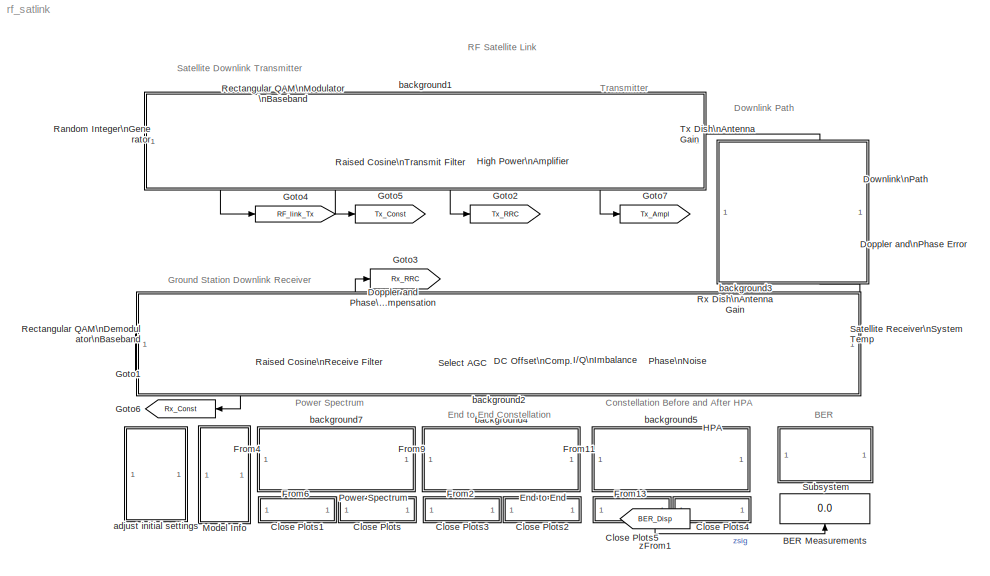
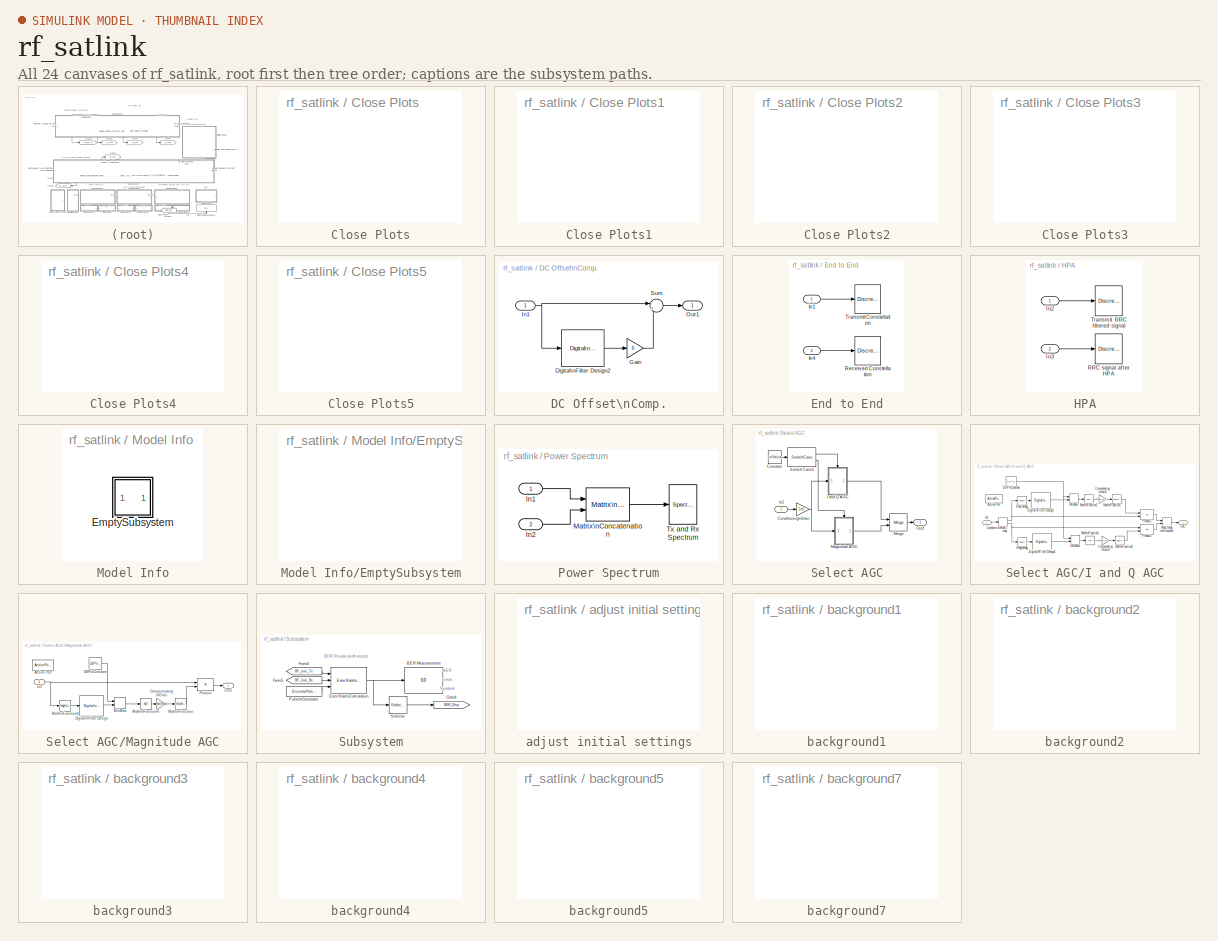
[diagram: thumbnail index - all 24 canvases of the model, root first then tree order]
MODEL rf_satlink
KIND model
BLOCK [Display] BER Measurements
  Decimation = 1
  Ports = [1]
BLOCK [SubSystem] Close Plots
  MaskDisplay = disp('Close Scopes');
  MaskIconFrame = on
  MaskIconOpaque = on
  MaskIconRotate = none
  MaskIconUnits = autoscale
  MinAlgLoopOccurrences = off
  OpenFcn = sdspfscope2([],[],[],'ScopeUpdate',[gcs '/Power Spectrum/Tx and Rx Spectrum'],'CloseFig');\nset_param([gcs '/Power Spectrum/Tx and Rx Spectrum'],'OpenScopeAtSimStart','off');
  Ports = []
  PropExecContextAcrossSSBoundary = on
  RTWSystemCode = Auto
  TreatAsAtomicUnit = off
BLOCK [SubSystem] Close Plots1
  MaskDisplay = disp('Open Scopes');
  MaskIconFrame = on
  MaskIconOpaque = on
  MaskIconRotate = none
  MaskIconUnits = autoscale
  MinAlgLoopOccurrences = off
  OpenFcn = sdspfscope2([],[],[],'ScopeUpdate',[gcs '/Power Spectrum/Tx and Rx Spectrum'],'OpenFig');\nset_param([gcs '/Power Spectrum/Tx and Rx Spectrum'],'OpenScopeAtSimStart','on');
  Ports = []
  PropExecContextAcrossSSBoundary = on
  RTWSystemCode = Auto
  TreatAsAtomicUnit = off
BLOCK [SubSystem] Close Plots2
  MaskDisplay = disp('Close Scopes');
  MaskIconFrame = on
  MaskIconOpaque = on
  MaskIconRotate = none
  MaskIconUnits = autoscale
  MinAlgLoopOccurrences = off
  OpenFcn = sdspfscope2([],[],[],'ScopeUpdate',[gcs '/End to End/Transmit Constellation'],'CloseFig');   \n   sdspfscope2([],[],[],'ScopeUpdate',[gcs '/End to End/Received Constellation'],'CloseFig');\n set_param([gcs '/End to End/Transmit Constellation'],'OpenScopeAtSimStart','off');          \n   set_param([gcs '/End to End/Received Constellation'],'OpenScopeAtSimStart','off');
  Ports = []
  PropExecContextAcrossSSBoundary = on
  RTWSystemCode = Auto
  TreatAsAtomicUnit = off
BLOCK [SubSystem] Close Plots3
  MaskDisplay = disp('Open Scopes');
  MaskIconFrame = on
  MaskIconOpaque = on
  MaskIconRotate = none
  MaskIconUnits = autoscale
  MinAlgLoopOccurrences = off
  OpenFcn = sdspfscope2([],[],[],'ScopeUpdate',[gcs '/End to End/Transmit Constellation'],'OpenFig');    \n    sdspfscope2([],[],[],'ScopeUpdate',[gcs '/End to End/Received Constellation'],'OpenFig');\n  set_param([gcs '/End to End/Transmit Constellation'],'OpenScopeAtSimStart','on');          \n    set_param([gcs '/End to End/Received Constellation'],'OpenScopeAtSimStart','on');
  Ports = []
  PropExecContextAcrossSSBoundary = on
  RTWSystemCode = Auto
  TreatAsAtomicUnit = off
BLOCK [SubSystem] Close Plots4
  MaskDisplay = disp('Close Scopes');
  MaskIconFrame = on
  MaskIconOpaque = on
  MaskIconRotate = none
  MaskIconUnits = autoscale
  MinAlgLoopOccurrences = off
  OpenFcn = sdspfscope2([],[],[],'ScopeUpdate',[gcs '/HPA/Transmit RRC filtered signal'],'CloseFig');\n  set_param([gcs '/HPA/Transmit RRC filtered signal'],'OpenScopeAtSimStart','off');      \n    sdspfscope2([],[],[],'ScopeUpdate',[gcs '/HPA/RRC signal after HPA'],'CloseFig');    \n  set_param([gcs '/HPA/RRC signal after HPA'],'OpenScopeAtSimStart','off');
  Ports = []
  PropExecContextAcrossSSBoundary = on
  RTWSystemCode = Auto
  TreatAsAtomicUnit = off
BLOCK [SubSystem] Close Plots5
  MaskDisplay = disp('Open Scopes');
  MaskIconFrame = on
  MaskIconOpaque = on
  MaskIconRotate = none
  MaskIconUnits = autoscale
  MinAlgLoopOccurrences = off
  OpenFcn = sdspfscope2([],[],[],'ScopeUpdate',[gcs '/HPA/Transmit RRC filtered signal'],'OpenFig');\nset_param([gcs '/HPA/Transmit RRC filtered signal'],'OpenScopeAtSimStart','on');        \n  sdspfscope2([],[],[],'ScopeUpdate',[gcs '/HPA/RRC signal after HPA'],'OpenFig');      \nset_param([gcs '/HPA/RRC signal after HPA'],'OpenScopeAtSimStart','on');                \n
  Ports = []
  PropExecContextAcrossSSBoundary = on
  RTWSystemCode = Auto
  TreatAsAtomicUnit = off
BLOCK [SubSystem] DC Offset\nComp.
  BlockChoice = Magnitude Only
  MaskDisplay = disp('DC\\nRemoval')
  MaskIconFrame = on
  MaskIconOpaque = on
  MaskIconRotate = none
  MaskIconUnits = autoscale
  MinAlgLoopOccurrences = off
  Ports = [1, 1]
  PropExecContextAcrossSSBoundary = on
  RTWSystemCode = Auto
  TreatAsAtomicUnit = off
BLOCK [Reference] DC Offset\nComp./Digital\nFilter Design2  REF=dsparch4/Digital\nFilter Design
  Ports = [1, 1]
  ShowPortLabels = on
  SourceBlock = dsparch4/Digital\nFilter Design
  SourceType = Unknown
  UserData = DataTag0
  UserDataPersistent = on
BLOCK [Gain] DC Offset\nComp./Gain
  Gain = 0
BLOCK [Inport] DC Offset\nComp./In1
  IconDisplay = Port number
  LatchInput = off
BLOCK [Outport] DC Offset\nComp./Out1
  BusOutputAsStruct = off
  IconDisplay = Port number
BLOCK [Sum] DC Offset\nComp./Sum
  IconShape = round
  InputSameDT = off
  Inputs = |+-
  OutDataTypeMode = Inherit via internal rule
  Ports = [2, 1]
BLOCK [Reference] Doppler and Phase\nCompensation  REF=commrflib2/Phase//\nFrequency\nOffset
  Ports = [1, 1]
  ShowPortLabels = on
  SourceBlock = commrflib2/Phase//\nFrequency\nOffset
  SourceType = Phase/Frequency Offset
  freqOffset = 0
  phaseOffset = 0
BLOCK [Reference] Doppler and\nPhase Error  REF=commrflib2/Phase//\nFrequency\nOffset
  Ports = [1, 1]
  ShowPortLabels = on
  SourceBlock = commrflib2/Phase//\nFrequency\nOffset
  SourceType = Phase/Frequency Offset
  freqOffset = 0
  phaseOffset = 0
BLOCK [Reference] Downlink\nPath  REF=commrflib2/Free Space\nPath Loss
  Ports = [1, 1]
  ShowPortLabels = on
  SourceBlock = commrflib2/Free Space\nPath Loss
  SourceType = Free Space Path Loss
  d = 35600
  dB = 180
  fc = 8000
  mode = Distance and Frequency
BLOCK [SubSystem] End to End
  MaskDisplay = disp('End-End\\nScatter\\nPlot')
  MaskIconFrame = on
  MaskIconOpaque = on
  MaskIconRotate = none
  MaskIconUnits = autoscale
  MinAlgLoopOccurrences = off
  Ports = [2]
  PropExecContextAcrossSSBoundary = on
  RTWSystemCode = Auto
  TreatAsAtomicUnit = on
BLOCK [Inport] End to End/In1
  IconDisplay = Port number
  LatchInput = off
BLOCK [Inport] End to End/In4
  IconDisplay = Port number
  LatchInput = off
  Port = 2
BLOCK [Reference] End to End/Received Constellation  REF=commsink2/Discrete-Time\nScatter Plot\nScope
  AxisGrid = on
  FigPos = [382 347 258 258]
  FrameNumber = off
  LineColors = r
  LineMarkers = .
  Ports = [1]
  ShowPortLabels = on
  SourceBlock = commsink2/Discrete-Time\nScatter Plot\nScope
  SourceType = Discrete-Time Scatter Plot Scope
  Tag = ScatterPlot
  block_type_ = scatter
  fading = on
  inphaseLabel = In-phase Amplitude
  numLinesMax = 50
  numNewFrames = 40
  numTraces = 160
  offsetEye = 0
  openScopeAtSimStart = on
  quadratureLabel = Quadrature Amplitude
  render = off
  sampPerSymb = 8
  xMax = 1.2246188834561
  xMin = -1.19233403062067
  yMax = 1.20845918650224
  yMin = -1.20849372757452
BLOCK [Reference] End to End/Transmit Constellation  REF=commsink2/Discrete-Time\nScatter Plot\nScope
  AxisGrid = on
  FigPos = [114 346 260 260]
  FrameNumber = on
  LineColors = b
  LineMarkers = .
  Ports = [1]
  ShowPortLabels = on
  SourceBlock = commsink2/Discrete-Time\nScatter Plot\nScope
  SourceType = Discrete-Time Scatter Plot Scope
  Tag = ScatterPlot
  block_type_ = scatter
  fading = on
  inphaseLabel = In-phase Amplitude
  numLinesMax = 50
  numNewFrames = 30
  numTraces = 30
  offsetEye = 0
  openScopeAtSimStart = on
  quadratureLabel = Quadrature Amplitude
  render = off
  sampPerSymb = 8
  xMax = 1.04829504434582
  xMin = -1.04355162785557
  yMax = 1.04829504434582
  yMin = -1.04355162785557
BLOCK [From] From11
  CloseFcn = tagdialog Close
  DialogController = Simulink.DDGSource
  GotoTag = Tx_RRC
BLOCK [From] From13
  CloseFcn = tagdialog Close
  DialogController = Simulink.DDGSource
  GotoTag = Tx_Ampl
BLOCK [From] From2
  CloseFcn = tagdialog Close
  DialogController = Simulink.DDGSource
  GotoTag = Rx_Const
BLOCK [From] From4
  CloseFcn = tagdialog Close
  DialogController = Simulink.DDGSource
  GotoTag = Tx_RRC
BLOCK [From] From6
  CloseFcn = tagdialog Close
  DialogController = Simulink.DDGSource
  GotoTag = Rx_RRC
BLOCK [From] From9
  CloseFcn = tagdialog Close
  DialogController = Simulink.DDGSource
  GotoTag = Tx_Const
BLOCK [Goto] Goto1
  DialogController = Simulink.DDGSource
  GotoTag = RF_link_Rx
  TagVisibility = global
BLOCK [Goto] Goto2
  DialogController = Simulink.DDGSource
  GotoTag = Tx_RRC
  TagVisibility = global
BLOCK [Goto] Goto3
  DialogController = Simulink.DDGSource
  GotoTag = Rx_RRC
  TagVisibility = global
BLOCK [Goto] Goto4
  DialogController = Simulink.DDGSource
  GotoTag = RF_link_Tx
  TagVisibility = global
BLOCK [Goto] Goto5
  DialogController = Simulink.DDGSource
  GotoTag = Tx_Const
  TagVisibility = global
BLOCK [Goto] Goto6
  DialogController = Simulink.DDGSource
  GotoTag = Rx_Const
  TagVisibility = global
BLOCK [Goto] Goto7
  DialogController = Simulink.DDGSource
  GotoTag = Tx_Ampl
  TagVisibility = global
BLOCK [SubSystem] HPA
  MaskDisplay = disp('HPA\\nScatter\\nPlot')
  MaskIconFrame = on
  MaskIconOpaque = on
  MaskIconRotate = none
  MaskIconUnits = autoscale
  MinAlgLoopOccurrences = off
  Ports = [2]
  PropExecContextAcrossSSBoundary = on
  RTWSystemCode = Auto
  TreatAsAtomicUnit = on
BLOCK [Inport] HPA/In2
  IconDisplay = Port number
  LatchInput = off
BLOCK [Inport] HPA/In3
  IconDisplay = Port number
  LatchInput = off
  Port = 2
BLOCK [Reference] HPA/RRC signal after HPA  REF=commsink2/Discrete-Time\nScatter Plot\nScope
  AxisGrid = on
  FigPos = [422 300 243 243]
  FrameNumber = off
  LineColors = r
  LineMarkers = .
  Ports = [1]
  ShowPortLabels = on
  SourceBlock = commsink2/Discrete-Time\nScatter Plot\nScope
  SourceType = Discrete-Time Scatter Plot Scope
  Tag = ScatterPlot
  block_type_ = scatter
  fading = on
  inphaseLabel = In-phase Amplitude
  numLinesMax = 50
  numNewFrames = 80
  numTraces = 200
  offsetEye = 0
  openScopeAtSimStart = off
  quadratureLabel = Quadrature Amplitude
  render = off
  sampPerSymb = 8
  xMax = 4.01163575275656
  xMin = -4.02161513041803
  yMax = 4.03974343887645
  yMin = -3.99350744429814
BLOCK [Reference] HPA/Transmit RRC filtered signal  REF=commsink2/Discrete-Time\nScatter Plot\nScope
  AxisGrid = on
  FigPos = [166 310 243 243]
  FrameNumber = off
  LineColors = b
  LineMarkers = .
  Ports = [1]
  ShowPortLabels = on
  SourceBlock = commsink2/Discrete-Time\nScatter Plot\nScope
  SourceType = Discrete-Time Scatter Plot Scope
  Tag = ScatterPlot
  block_type_ = scatter
  fading = on
  inphaseLabel = In-phase Amplitude
  numLinesMax = 50
  numNewFrames = 80
  numTraces = 200
  offsetEye = 0
  openScopeAtSimStart = off
  quadratureLabel = Quadrature Amplitude
  render = off
  sampPerSymb = 8
  xMax = 0.495177369466584
  xMin = -0.494106248905821
  yMax = 0.500446418364239
  yMin = -0.488837200008166
BLOCK [Reference] High Power\nAmplifier  REF=commrflib2/Memoryless\nNonlinearity
  GindB = -21.5957
  GoutdB = 32.9118
  Ports = [1, 1]
  ShowPortLabels = on
  SourceBlock = commrflib2/Memoryless\nNonlinearity
  SourceType = Memoryless Nonlinearity
  am2pm = 1
  amam = [2.1587 1.1517]
  ampm = [4.0330 9.1040]
  iip3 = 30
  linGaindB = 16
  model_select = Saleh model
  p = 0.3
  vsat = 100
  x = [8.1081 1.5413 6.5202 -0.0718]
  y = [4.6645 2.0965 10.88 -0.003]
BLOCK [Reference] I//Q\nImbalance  REF=commrflib2/I//Q\nImbalance
  Idc = 0
  Ports = [1, 1]
  Qdc = 0
  ShowPortLabels = on
  SourceBlock = commrflib2/I//Q\nImbalance
  SourceType = I/Q Imbalance
  ampImbal = 0
  phsImbal = 0
BLOCK [SubSystem] Model Info
  CopyFcn = slcm CopyBlock;
  DeleteFcn = slcm Cancel;
  InitFcn = slcm('UpdateAllCMBlocksInThisModelInit')
  LoadFcn = slcm LoadBlock;
  MaskCallbackString = ||||||||||||||||||||||||||||||
  MaskDescription = This block allows revision control information to be displayed within the model.
  MaskDisplay = text(str2num(LeftAlignmentValue), 0.5, MaskDisplayString, 'HorizontalAlignment', HorizontalTextAlignment)\n
  MaskEnableString = on,on,on,on,on,on,on,on,on,on,on,on,on,on,on,on,on,on,on,on,on,on,on,on,on,on,on,on,on,on,on
  MaskIconFrame = on
  MaskIconOpaque = on
  MaskIconRotate = none
  MaskIconUnits = normalized
  MaskPromptString = InitialSaveTempField|InitialBlockCM|BlockCM|Frame|SaveTempField|DisplayStringWithTags|MaskDisplayString|HorizontalTextAlignment|LeftAlignmentValue|SourceBlockDiagram|TagMaxNumber|CMTag1|CMTag2|CMTag3|CMTag4|CMTag5|CMTag6|CMTag7|CMTag8|CMTag9|CMTag10|CMTag11|CMTag12|CMTag13|CMTag14|CMTag15|CMTag16|CMTag17|CMTag18|CMTag19|CMTag20
  MaskSelfModifiable = on
  MaskStyleString = edit,edit,edit,edit,edit,edit,edit,edit,edit,edit,edit,edit,edit,edit,edit,edit,edit,edit,edit,edit,edit,edit,edit,edit,edit,edit,edit,edit,edit,edit,edit
  MaskTabNameString = ,,,,,,,,,,,,,,,,,,,,,,,,,,,,,,
  MaskToolTipString = on,on,on,on,on,on,on,on,on,on,on,on,on,on,on,on,on,on,on,on,on,on,on,on,on,on,on,on,on,on,on
  MaskTunableValueString = on,on,on,on,on,on,on,on,on,on,on,on,on,on,on,on,on,on,on,on,on,on,on,on,on,on,on,on,on,on,on
  MaskType = CMBlock
  MaskValueString = |None|None|on||Info|Info|Center|0.5|rf_satlink|20||||||||||||||||||||
  MaskVarAliasString = ,,,,,,,,,,,,,,,,,,,,,,,,,,,,,,
  MaskVariables = InitialSaveTempField=&1;InitialBlockCM=&2;BlockCM=&3;Frame=&4;SaveTempField=&5;DisplayStringWithTags=&6;MaskDisplayString=&7;HorizontalTextAlignment=&8;LeftAlignmentValue=&9;SourceBlockDiagram=&10;TagMaxNumber=@11;CMTag1=&12;CMTag2=&13;CMTag3=&14;CMTag4=&15;CMTag5=&16;CMTag6=&17;CMTag7=&18;CMTag8=&19;CMTag9=&20;CMTag10=&21;CMTag11=&22;CMTag12=&23;CMTag13=&24;CMTag14=&25;CMTag15=&26;CMTag16=&27;CMT...<+45ch>
  MaskVisibilityString = off,off,off,off,off,off,off,off,off,off,off,off,off,off,off,off,off,off,off,off,off,off,off,off,off,off,off,off,off,off,off
  MinAlgLoopOccurrences = off
  NameChangeFcn = slcm Rename;
  OpenFcn = commdemohelp;
  Ports = []
  PostSaveFcn = slcm('UpdateAllCMBlocksInThisModel')
  PropExecContextAcrossSSBoundary = on
  RTWSystemCode = Auto
  TreatAsAtomicUnit = off
BLOCK [SubSystem] Model Info/EmptySubsystem
  MinAlgLoopOccurrences = off
  Ports = []
  PropExecContextAcrossSSBoundary = on
  RTWSystemCode = Auto
  TreatAsAtomicUnit = off
BLOCK [Reference] Phase\nNoise  REF=commrflib2/Phase\nNoise
  Fo = 100
  PhNs = -100
  Ports = [1, 1]
  ShowPortLabels = on
  SourceBlock = commrflib2/Phase\nNoise
  SourceType = Phase Noise
  seed = 2137
BLOCK [SubSystem] Power Spectrum
  MaskDisplay = disp('Power\\nSpectrum')
  MaskIconFrame = on
  MaskIconOpaque = on
  MaskIconRotate = none
  MaskIconUnits = autoscale
  MinAlgLoopOccurrences = off
  Ports = [2]
  PropExecContextAcrossSSBoundary = on
  RTWSystemCode = Auto
  TreatAsAtomicUnit = on
BLOCK [Inport] Power Spectrum/In1
  IconDisplay = Port number
  LatchInput = off
BLOCK [Inport] Power Spectrum/In2
  IconDisplay = Port number
  LatchInput = off
  Port = 2
BLOCK [Reference] Power Spectrum/Matrix\nConcatenation  REF=simulink/Math\nOperations/Matrix\nConcatenation
  Ports = [2, 1]
  SourceBlock = simulink/Math\nOperations/Matrix\nConcatenation
  SourceType = Matrix Concatenation
  catMethod = Horizontal
  numInports = 2
BLOCK [Reference] Power Spectrum/Tx and Rx Spectrum  REF=dspsnks4/Spectrum\nScope
  AttributesFormatString = \\n
  AxisGrid = on
  AxisLegend = off
  AxisProperties = off
  AxisZoom = off
  BufferSize = 512
  DisplayProperties = on
  Domain = Frequency
  FFTlength = 128
  FigPos = [649 346 260 261]
  FrameNumber = off
  HorizSpan = 1
  InheritXIncr = on
  LineColors = b|r
  LineProperties = off
  Memory = off
  OpenScopeAtSimStart = on
  OpenScopeImmediately = off
  Overlap = 256
  Ports = [1]
  ScopeProperties = off
  ShowPortLabels = off
  SourceBlock = dspsnks4/Spectrum\nScope
  SourceType = Spectrum Scope
  UseBuffer = on
  XIncr = 1
  XLabel = Samples
  XRange = [-Fs/2...Fs/2]
  XUnits = Hertz
  YLabel = Magnitude, dB
  YMax = 21.004490174206
  YMin = -122.592488733173
  YUnits = dB
  inpFftLenInherit = off
  numAvg = 4
BLOCK [Reference] Raised Cosine\nReceive Filter  REF=commfilt2/Raised Cosine\nReceive Filter
  D = 3
  N = 8
  Ports = [1, 1]
  R = 0.3
  ShowPortLabels = on
  SourceBlock = commfilt2/Raised Cosine\nReceive Filter
  SourceType = Raised Cosine Receive Filter
  checkCoeff = off
  checkGain = Normalized
  downFactor = 8
  downOffset = 0
  filtType = Square root
  filterGain = 1
  launchFVT = off
  rateMode = Downsampling
  sampMode = Frame-based
  variableName = rcRxFilt
BLOCK [Reference] Raised Cosine\nTransmit Filter  REF=commfilt2/Raised Cosine\nTransmit Filter
  D = 3
  N = 8
  Ports = [1, 1]
  R = 0.3
  ShowPortLabels = on
  SourceBlock = commfilt2/Raised Cosine\nTransmit Filter
  SourceType = Raised Cosine Transmit Filter
  checkCoeff = off
  checkGain = Normalized
  filtType = Square root
  filterGain = 1
  launchFVT = off
  sampMode = Frame-based
  variableName = rcTxFilt
BLOCK [Reference] Random Integer\nGenerator  REF=commrandsrc2/Random Integer\nGenerator
  Ports = [0, 1]
  ShowPortLabels = on
  SourceBlock = commrandsrc2/Random Integer\nGenerator
  SourceType = Random Integer Generator
  Ts = 4/100000
  frameBased = on
  mul = 16
  orient = off
  sampPerFrame = 100
  seed = 37
BLOCK [Reference] Rectangular QAM\nDemodulator\nBaseband  REF=commdigbbndam2/Rectangular QAM\nDemodulator\nBaseband
  AvgPow = 1
  Dec = Binary
  M = 16
  MinDist = 2
  OutType = Integer
  PeakPow = 1
  Ph = 0
  Ports = [1, 1]
  PowType = Average Power
  SourceBlock = commdigbbndam2/Rectangular QAM\nDemodulator\nBaseband
  SourceType = Rectangular QAM Demodulator Baseband
  numSamp = 1
BLOCK [Reference] Rectangular QAM\nModulator\nBaseband  REF=commdigbbndam2/Rectangular QAM\nModulator\nBaseband
  AvgPow = 1
  Enc = Gray
  InType = Integer
  M = 16
  MinDist = 2
  PeakPow = 1
  Ph = 0
  Ports = [1, 1]
  PowType = Average Power
  SourceBlock = commdigbbndam2/Rectangular QAM\nModulator\nBaseband
  SourceType = Rectangular QAM Modulator Baseband
  numSamp = 1
BLOCK [Gain] Rx Dish\nAntenna Gain
  Gain = 248.5192
BLOCK [Reference] Satellite Receiver\nSystem Temp  REF=commrflib2/Receiver\nThermal Noise
  Ports = [1, 1]
  ShowPortLabels = on
  SourceBlock = commrflib2/Receiver\nThermal Noise
  SourceType = Receiver Thermal Noise
  method = Noise temperature
  nfactor = 2
  nfigure = 3.01
  ntemp = 0
  seed = 67987
BLOCK [SubSystem] Select AGC
  AncestorBlock = rf_agc_sel/Select AGC
  MaskDisplay = disp([char(swCase) '\\nAGC'])
  MaskEnableString = on
  MaskIconFrame = on
  MaskIconOpaque = on
  MaskIconRotate = none
  MaskIconUnits = autoscale
  MaskInitialization = charCase = char(swCase);\nswitch charCase,\ncase 'I and Q',\n		selValue = 1;\notherwise,\n		selValue = 0;\nend\n
  MaskPromptString = Case Value:
  MaskStyleString = popup(Magnitude|I and Q)
  MaskToolTipString = on
  MaskTunableValueString = on
  MaskValueString = Magnitude
  MaskVariables = swCase=&1;
  MaskVisibilityString = on
  MinAlgLoopOccurrences = off
  Ports = [1, 1]
  PropExecContextAcrossSSBoundary = on
  RTWSystemCode = Auto
  TreatAsAtomicUnit = off
BLOCK [Gain] Select AGC/Conditioning\nGain
  Gain = 1e6
BLOCK [Constant] Select AGC/Constant
  Value = selValue
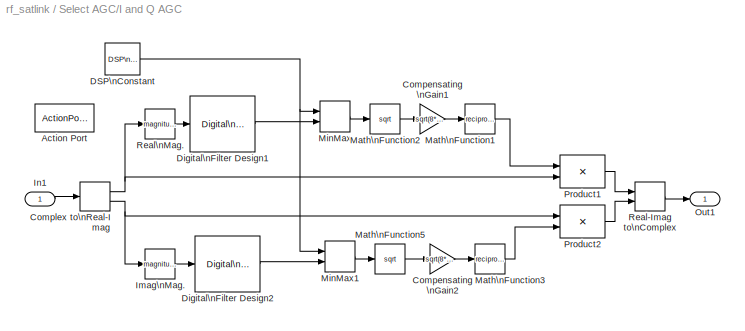
BLOCK [SubSystem] Select AGC/I and Q AGC
  MaskIconFrame = on
  MaskIconOpaque = on
  MaskIconRotate = none
  MaskIconUnits = autoscale
  MinAlgLoopOccurrences = off
  Ports = [1, 1, 0, 0, 0, 0, 0, 1]
  PropExecContextAcrossSSBoundary = on
  RTWSystemCode = Auto
  TreatAsAtomicUnit = on
BLOCK [ActionPort] Select AGC/I and Q AGC/Action Port
  ActionType = case
BLOCK [Gain] Select AGC/I and Q AGC/Compensating \nGain1
  Gain = sqrt(8*2)
BLOCK [Gain] Select AGC/I and Q AGC/Compensating \nGain2
  Gain = sqrt(8*2)
BLOCK [ComplexToRealImag] Select AGC/I and Q AGC/Complex to\nReal-Imag
  Output = Real and imag
  Ports = [1, 2]
BLOCK [Reference] Select AGC/I and Q AGC/DSP\nConstant  REF=dspsrcs4/DSP\nConstant
  AttributesFormatString = <path>
  FramebasedOutput = on
  InterpretAs1D = off
  Ports = [0, 1]
  SampleMode = Discrete
  ShowPortLabels = on
  SourceBlock = dspsrcs4/DSP\nConstant
  SourceType = DSP Constant
  Ts = -1
  Value = eps
  additionalParams = off
  allowOverrides = on
  continuousOutput = Sample-based
  dataType = Inherit from 'Constant value'
  discreteOutput = Frame-based
  fracBitsMode = Best precision
  framePeriod = -1
  numFracBits = 15
  sampTime = -1
  udDataType = sfix(16)
  wordLen = 16
BLOCK [Reference] Select AGC/I and Q AGC/Digital\nFilter Design1  REF=dsparch4/Digital\nFilter Design
  Ports = [1, 1]
  ShowPortLabels = on
  SourceBlock = dsparch4/Digital\nFilter Design
  SourceType = Unknown
  UserData = DataTag1
  UserDataPersistent = on
BLOCK [Reference] Select AGC/I and Q AGC/Digital\nFilter Design2  REF=dsparch4/Digital\nFilter Design
  Ports = [1, 1]
  ShowPortLabels = on
  SourceBlock = dsparch4/Digital\nFilter Design
  SourceType = Unknown
  UserData = DataTag2
  UserDataPersistent = on
BLOCK [Math] Select AGC/I and Q AGC/Imag\nMag.
  Operator = magnitude^2
  Ports = [1, 1]
BLOCK [Inport] Select AGC/I and Q AGC/In1
  IconDisplay = Port number
  LatchInput = off
BLOCK [Math] Select AGC/I and Q AGC/Math\nFunction1
  Operator = reciprocal
  Ports = [1, 1]
BLOCK [Math] Select AGC/I and Q AGC/Math\nFunction2
  Operator = sqrt
  Ports = [1, 1]
BLOCK [Math] Select AGC/I and Q AGC/Math\nFunction3
  Operator = reciprocal
  Ports = [1, 1]
BLOCK [Math] Select AGC/I and Q AGC/Math\nFunction5
  Operator = sqrt
  Ports = [1, 1]
BLOCK [MinMax] Select AGC/I and Q AGC/MinMax
  Function = max
  Inputs = 2
  Ports = [2, 1]
BLOCK [MinMax] Select AGC/I and Q AGC/MinMax1
  Function = max
  Inputs = 2
  Ports = [2, 1]
BLOCK [Outport] Select AGC/I and Q AGC/Out1
  BusOutputAsStruct = off
  IconDisplay = Port number
BLOCK [Product] Select AGC/I and Q AGC/Product1
  InputSameDT = off
  Ports = [2, 1]
  RndMeth = Floor
BLOCK [Product] Select AGC/I and Q AGC/Product2
  InputSameDT = off
  Ports = [2, 1]
  RndMeth = Floor
BLOCK [RealImagToComplex] Select AGC/I and Q AGC/Real-Imag to\nComplex
  Input = Real and imag
  Ports = [2, 1]
BLOCK [Math] Select AGC/I and Q AGC/Real\nMag.
  Operator = magnitude^2
  Ports = [1, 1]
BLOCK [Inport] Select AGC/In2
  IconDisplay = Port number
  LatchInput = off
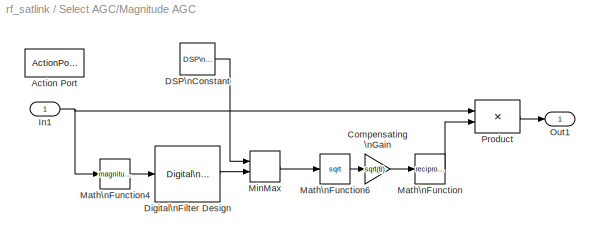
BLOCK [SubSystem] Select AGC/Magnitude AGC
  MinAlgLoopOccurrences = off
  Ports = [1, 1, 0, 0, 0, 0, 0, 1]
  PropExecContextAcrossSSBoundary = on
  RTWSystemCode = Auto
  TreatAsAtomicUnit = on
BLOCK [ActionPort] Select AGC/Magnitude AGC/Action Port
  ActionType = default
BLOCK [Gain] Select AGC/Magnitude AGC/Compensating \nGain
  Gain = sqrt(8)
BLOCK [Reference] Select AGC/Magnitude AGC/DSP\nConstant  REF=dspsrcs4/DSP\nConstant
  AttributesFormatString = <path>
  FramebasedOutput = on
  InterpretAs1D = off
  Ports = [0, 1]
  SampleMode = Discrete
  ShowPortLabels = on
  SourceBlock = dspsrcs4/DSP\nConstant
  SourceType = DSP Constant
  Ts = -1
  Value = eps
  additionalParams = off
  allowOverrides = on
  continuousOutput = Sample-based
  dataType = Inherit from 'Constant value'
  discreteOutput = Frame-based
  fracBitsMode = Best precision
  framePeriod = -1
  numFracBits = 15
  sampTime = -1
  udDataType = sfix(16)
  wordLen = 16
BLOCK [Reference] Select AGC/Magnitude AGC/Digital\nFilter Design  REF=dsparch4/Digital\nFilter Design
  Ports = [1, 1]
  ShowPortLabels = on
  SourceBlock = dsparch4/Digital\nFilter Design
  SourceType = Unknown
  UserData = DataTag3
  UserDataPersistent = on
BLOCK [Inport] Select AGC/Magnitude AGC/In1
  IconDisplay = Port number
  LatchInput = off
BLOCK [Math] Select AGC/Magnitude AGC/Math\nFunction
  Operator = reciprocal
  Ports = [1, 1]
BLOCK [Math] Select AGC/Magnitude AGC/Math\nFunction4
  Operator = magnitude^2
  Ports = [1, 1]
BLOCK [Math] Select AGC/Magnitude AGC/Math\nFunction6
  Operator = sqrt
  Ports = [1, 1]
BLOCK [MinMax] Select AGC/Magnitude AGC/MinMax
  Function = max
  Inputs = 2
  Ports = [2, 1]
BLOCK [Outport] Select AGC/Magnitude AGC/Out1
  BusOutputAsStruct = off
  IconDisplay = Port number
BLOCK [Product] Select AGC/Magnitude AGC/Product
  InputSameDT = off
  Ports = [2, 1]
  RndMeth = Floor
BLOCK [Merge] Select AGC/Merge
  InitialOutput = 0
  Ports = [2, 1]
BLOCK [Outport] Select AGC/Out1
  BusOutputAsStruct = off
  IconDisplay = Port number
BLOCK [SwitchCase] Select AGC/Switch Case1
  Ports = [1, 2]
BLOCK [SubSystem] Subsystem
  MaskDisplay = disp('Display Complete\\nBit Error Rate\\nInformation');
  MaskIconFrame = on
  MaskIconOpaque = on
  MaskIconRotate = none
  MaskIconUnits = autoscale
  MinAlgLoopOccurrences = off
  Ports = []
  PropExecContextAcrossSSBoundary = on
  RTWSystemCode = Auto
  TreatAsAtomicUnit = off
BLOCK [Display] Subsystem/BER Measurements
  Decimation = 1
  Ports = [1]
BLOCK [Reference] Subsystem/Error Rate\nCalculation  REF=commsink2/Error Rate\nCalculation
  N = 6
  PMode = Port
  Ports = [3, 1]
  RsMode2 = on
  SourceBlock = commsink2/Error Rate\nCalculation
  SourceType = Error Rate Calculation
  WsName = ErrorVec
  cp_mode = Entire frame
  maxBits = 1e6
  numErr = 200
  st_delay = 0
  stop = off
  subframe = []
BLOCK [From] Subsystem/From3
  CloseFcn = tagdialog Close
  DialogController = Simulink.DDGSource
  GotoTag = RF_link_Tx
BLOCK [From] Subsystem/From5
  CloseFcn = tagdialog Close
  DialogController = Simulink.DDGSource
  GotoTag = RF_link_Rx
BLOCK [Goto] Subsystem/Goto4
  DialogController = Simulink.DDGSource
  GotoTag = BER_Disp
  TagVisibility = global
BLOCK [DiscretePulseGenerator] Subsystem/Pulse\nGenerator
  Period = 50
  Ports = [0, 1]
  SampleTime = 4/1000
BLOCK [Selector] Subsystem/Selector
  Elements = [1]
  InputPortWidth = 3
  Ports = [1, 1]
BLOCK [Gain] Tx Dish\nAntenna Gain
  Gain = 248.5192
BLOCK [SubSystem] adjust initial settings
  MaskCallbackString = rf_link_mask(gcb,'cbAltitude');|rf_link_mask(gcb,'cbFrequency');|rf_link_mask(gcb,'cbAntDiam');|rf_link_mask(gcb,'cbSelTemp');|rf_link_mask(gcb,'cbSelLvlSat');|rf_link_mask(gcb,'cbSelCorrPh');|rf_link_mask(gcb,'cbSelDopper');|rf_link_mask(gcb,'cbSelNoPh');|rf_link_mask(gcb,'cbSelImbal');|rf_link_mask(gcb,'cbDcOffset');|rf_link_mask(gcb,'cbSelAGC');
  MaskDescription = Select the scenarios from the mask to change the link parameters. Each of the mask parameters sets the parameters in the corresponding RF impairment block(s).
  MaskDisplay = disp('RF Link\\nDemo:\\nSettings');
  MaskEnableString = on,on,on,on,on,on,on,on,on,on,on
  MaskIconFrame = on
  MaskIconOpaque = on
  MaskIconRotate = none
  MaskIconUnits = autoscale
  MaskInitialization = eStr = rf_link_mask(gcb,'init');\n\nif(isfield(eStr,'emsg') & ~isempty(eStr.emsg))\n	errordlg(eStr.emsg);\nend\nif(isfield(eStr,'emsg_w') & ~isempty(eStr.emsg_w))\n	warndlg(eStr.emsg_w);\nend\n\n
  MaskPromptString = Satellite altitude (km):|Frequency (MHz):|Transmit and receive antenna sizes (m):|Noise temperature (K):|HPA backoff level:|Phase correction:|Doppler error:|Phase noise:|I/Q imbalance:|DC offset compensation:|AGC type:
  MaskSelfModifiable = on
  MaskStyleString = edit,edit,edit,popup(0 (no noise)|20 (very low noise level)|290 (typical noise level)),popup(30 dB  (negligible nonlinearity)|7 dB  (moderate nonlinearity)|1 dB  (severe nonlinearity)),popup(None|Correct for moderate HPA AM to PM|Correct for severe HPA AM to PM),popup(None|Doppler (0.7 Hz - uncorrected)|Doppler (3 Hz - corrected)),popup(Negligible (-100 dBc/Hz @ 100 Hz)|Low  (-55 dBc/Hz @ 100 Hz)|...<+212ch>
  MaskTabNameString = ,,,,,,,,,,
  MaskToolTipString = on,on,on,on,on,on,on,on,on,on,on
  MaskTunableValueString = on,on,on,on,on,on,on,on,on,on,on
  MaskType = RF Link Demo:Initial Settings
  MaskValueString = 35600|8000|[2 2]|0 (no noise)|30 dB  (negligible nonlinearity)|None|None|Negligible (-100 dBc/Hz @ 100 Hz)|None|Disabled|Magnitude only
  MaskVarAliasString = ,,,,,,,,,,
  MaskVariables = altitude=@1;frequency=@2;antDiam=@3;selTemp=@4;selLvlBO=@5;selCorrPh=@6;selDopper=@7;selNoPh=@8;selImbal=@9;selDcOffset=@10;selAGC=@11;
  MaskVisibilityString = on,on,on,on,on,on,on,on,on,on,on
  MinAlgLoopOccurrences = off
  Ports = []
  PropExecContextAcrossSSBoundary = on
  RTWSystemCode = Auto
  TreatAsAtomicUnit = off
BLOCK [SubSystem] background1
  MaskDisplay = disp('')
  MaskIconFrame = on
  MaskIconOpaque = on
  MaskIconRotate = none
  MaskIconUnits = autoscale
  MinAlgLoopOccurrences = off
  Ports = []
  PropExecContextAcrossSSBoundary = on
  RTWSystemCode = Auto
  TreatAsAtomicUnit = off
BLOCK [SubSystem] background2
  MaskDisplay = disp('')
  MaskIconFrame = on
  MaskIconOpaque = on
  MaskIconRotate = none
  MaskIconUnits = autoscale
  MinAlgLoopOccurrences = off
  Ports = []
  PropExecContextAcrossSSBoundary = on
  RTWSystemCode = Auto
  TreatAsAtomicUnit = off
BLOCK [SubSystem] background3
  MaskDisplay = disp('')
  MaskIconFrame = on
  MaskIconOpaque = on
  MaskIconRotate = none
  MaskIconUnits = autoscale
  MinAlgLoopOccurrences = off
  Ports = []
  PropExecContextAcrossSSBoundary = on
  RTWSystemCode = Auto
  TreatAsAtomicUnit = off
BLOCK [SubSystem] background4
  MaskDisplay = disp('')
  MaskIconFrame = on
  MaskIconOpaque = on
  MaskIconRotate = none
  MaskIconUnits = autoscale
  MinAlgLoopOccurrences = off
  Ports = []
  PropExecContextAcrossSSBoundary = on
  RTWSystemCode = Auto
  TreatAsAtomicUnit = off
BLOCK [SubSystem] background5
  MaskDisplay = disp('')
  MaskIconFrame = on
  MaskIconOpaque = on
  MaskIconRotate = none
  MaskIconUnits = autoscale
  MinAlgLoopOccurrences = off
  Ports = []
  PropExecContextAcrossSSBoundary = on
  RTWSystemCode = Auto
  TreatAsAtomicUnit = off
BLOCK [SubSystem] background7
  MaskDisplay = disp('')
  MaskIconFrame = on
  MaskIconOpaque = on
  MaskIconRotate = none
  MaskIconUnits = autoscale
  MinAlgLoopOccurrences = off
  Ports = []
  PropExecContextAcrossSSBoundary = on
  RTWSystemCode = Auto
  TreatAsAtomicUnit = off
BLOCK [From] zFrom1
  CloseFcn = tagdialog Close
  DialogController = Simulink.DDGSource
  GotoTag = BER_Disp
ANNOTATION (root): BER
ANNOTATION (root): Constellation Before and After HPA
ANNOTATION (root): Downlink Path
ANNOTATION (root): End to End Constellation
ANNOTATION (root): Ground Station Downlink Receiver
ANNOTATION (root): Power Spectrum
ANNOTATION (root): RF Satellite Link
ANNOTATION (root): Satellite Downlink Transmitter
ANNOTATION (root): Transmitter
ANNOTATION Subsystem: BER
ANNOTATION Subsystem: BER Results (with resets)
ANNOTATION Subsystem: Errors
ANNOTATION Subsystem: Symbols
LINE DC Offset\nComp./Digital\nFilter Design2:1 -> DC Offset\nComp./Gain:1
LINE DC Offset\nComp./Gain:1 -> DC Offset\nComp./Sum:2
NET DC Offset\nComp./In1:1 -> DC Offset\nComp./Digital\nFilter Design2:1, DC Offset\nComp./Sum:1
LINE DC Offset\nComp./Sum:1 -> DC Offset\nComp./Out1:1
LINE DC Offset\nComp.:1 -> Select AGC:1
NET Doppler and Phase\nCompensation:1 -> Goto3:1, Raised Cosine\nReceive Filter:1
LINE Doppler and\nPhase Error:1 -> Satellite Receiver\nSystem Temp:1
LINE Downlink\nPath:1 -> Doppler and\nPhase Error:1
LINE End to End/In1:1 -> End to End/Transmit Constellation:1
LINE End to End/In4:1 -> End to End/Received Constellation:1
LINE From11:1 -> HPA:1
LINE From13:1 -> HPA:2
LINE From2:1 -> End to End:2
LINE From4:1 -> Power Spectrum:1
LINE From6:1 -> Power Spectrum:2
LINE From9:1 -> End to End:1
LINE HPA/In2:1 -> HPA/Transmit RRC filtered signal:1
LINE HPA/In3:1 -> HPA/RRC signal after HPA:1
NET High Power\nAmplifier:1 -> Goto7:1, Tx Dish\nAntenna Gain:1
LINE I//Q\nImbalance:1 -> DC Offset\nComp.:1
LINE Phase\nNoise:1 -> I//Q\nImbalance:1
LINE Power Spectrum/In1:1 -> Power Spectrum/Matrix\nConcatenation:1
LINE Power Spectrum/In2:1 -> Power Spectrum/Matrix\nConcatenation:2
LINE Power Spectrum/Matrix\nConcatenation:1 -> Power Spectrum/Tx and Rx Spectrum:1
NET Raised Cosine\nReceive Filter:1 -> Goto6:1, Rectangular QAM\nDemodulator\nBaseband:1
NET Raised Cosine\nTransmit Filter:1 -> Goto2:1, High Power\nAmplifier:1
NET Random Integer\nGenerator:1 -> Goto4:1, Rectangular QAM\nModulator\nBaseband:1
LINE Rectangular QAM\nDemodulator\nBaseband:1 -> Goto1:1
NET Rectangular QAM\nModulator\nBaseband:1 -> Goto5:1, Raised Cosine\nTransmit Filter:1
LINE Rx Dish\nAntenna Gain:1 -> Phase\nNoise:1
LINE Satellite Receiver\nSystem Temp:1 -> Rx Dish\nAntenna Gain:1
NET Select AGC/Conditioning\nGain:1 -> Select AGC/I and Q AGC:1, Select AGC/Magnitude AGC:1
LINE Select AGC/Constant:1 -> Select AGC/Switch Case1:1
LINE Select AGC/I and Q AGC/Compensating \nGain1:1 -> Select AGC/I and Q AGC/Math\nFunction1:1
LINE Select AGC/I and Q AGC/Compensating \nGain2:1 -> Select AGC/I and Q AGC/Math\nFunction3:1
NET Select AGC/I and Q AGC/Complex to\nReal-Imag:1 -> Select AGC/I and Q AGC/Product1:2, Select AGC/I and Q AGC/Real\nMag.:1
NET Select AGC/I and Q AGC/Complex to\nReal-Imag:2 -> Select AGC/I and Q AGC/Imag\nMag.:1, Select AGC/I and Q AGC/Product2:1
NET Select AGC/I and Q AGC/DSP\nConstant:1 -> Select AGC/I and Q AGC/MinMax1:1, Select AGC/I and Q AGC/MinMax:1
LINE Select AGC/I and Q AGC/Digital\nFilter Design1:1 -> Select AGC/I and Q AGC/MinMax:2
LINE Select AGC/I and Q AGC/Digital\nFilter Design2:1 -> Select AGC/I and Q AGC/MinMax1:2
LINE Select AGC/I and Q AGC/Imag\nMag.:1 -> Select AGC/I and Q AGC/Digital\nFilter Design2:1
LINE Select AGC/I and Q AGC/In1:1 -> Select AGC/I and Q AGC/Complex to\nReal-Imag:1
LINE Select AGC/I and Q AGC/Math\nFunction1:1 -> Select AGC/I and Q AGC/Product1:1
LINE Select AGC/I and Q AGC/Math\nFunction2:1 -> Select AGC/I and Q AGC/Compensating \nGain1:1
LINE Select AGC/I and Q AGC/Math\nFunction3:1 -> Select AGC/I and Q AGC/Product2:2
LINE Select AGC/I and Q AGC/Math\nFunction5:1 -> Select AGC/I and Q AGC/Compensating \nGain2:1
LINE Select AGC/I and Q AGC/MinMax1:1 -> Select AGC/I and Q AGC/Math\nFunction5:1
LINE Select AGC/I and Q AGC/MinMax:1 -> Select AGC/I and Q AGC/Math\nFunction2:1
LINE Select AGC/I and Q AGC/Product1:1 -> Select AGC/I and Q AGC/Real-Imag to\nComplex:1
LINE Select AGC/I and Q AGC/Product2:1 -> Select AGC/I and Q AGC/Real-Imag to\nComplex:2
LINE Select AGC/I and Q AGC/Real-Imag to\nComplex:1 -> Select AGC/I and Q AGC/Out1:1
LINE Select AGC/I and Q AGC/Real\nMag.:1 -> Select AGC/I and Q AGC/Digital\nFilter Design1:1
LINE Select AGC/I and Q AGC:1 -> Select AGC/Merge:1
LINE Select AGC/In2:1 -> Select AGC/Conditioning\nGain:1
LINE Select AGC/Magnitude AGC/Compensating \nGain:1 -> Select AGC/Magnitude AGC/Math\nFunction:1
LINE Select AGC/Magnitude AGC/DSP\nConstant:1 -> Select AGC/Magnitude AGC/MinMax:1
LINE Select AGC/Magnitude AGC/Digital\nFilter Design:1 -> Select AGC/Magnitude AGC/MinMax:2
NET Select AGC/Magnitude AGC/In1:1 -> Select AGC/Magnitude AGC/Math\nFunction4:1, Select AGC/Magnitude AGC/Product:1
LINE Select AGC/Magnitude AGC/Math\nFunction4:1 -> Select AGC/Magnitude AGC/Digital\nFilter Design:1
LINE Select AGC/Magnitude AGC/Math\nFunction6:1 -> Select AGC/Magnitude AGC/Compensating \nGain:1
LINE Select AGC/Magnitude AGC/Math\nFunction:1 -> Select AGC/Magnitude AGC/Product:2
LINE Select AGC/Magnitude AGC/MinMax:1 -> Select AGC/Magnitude AGC/Math\nFunction6:1
LINE Select AGC/Magnitude AGC/Product:1 -> Select AGC/Magnitude AGC/Out1:1
LINE Select AGC/Magnitude AGC:1 -> Select AGC/Merge:2
LINE Select AGC/Merge:1 -> Select AGC/Out1:1
LINE Select AGC/Switch Case1:1 -> Select AGC/I and Q AGC:ifaction
LINE Select AGC/Switch Case1:2 -> Select AGC/Magnitude AGC:ifaction
LINE Select AGC:1 -> Doppler and Phase\nCompensation:1
NET Subsystem/Error Rate\nCalculation:1 -> Subsystem/BER Measurements:1, Subsystem/Selector:1
LINE Subsystem/From3:1 -> Subsystem/Error Rate\nCalculation:1
LINE Subsystem/From5:1 -> Subsystem/Error Rate\nCalculation:2
LINE Subsystem/Pulse\nGenerator:1 -> Subsystem/Error Rate\nCalculation:3
LINE Subsystem/Selector:1 -> Subsystem/Goto4:1
LINE Tx Dish\nAntenna Gain:1 -> Downlink\nPath:1
LINE zFrom1:1 -> BER Measurements:1
note: NET lines group one-source signal fan-out (src -> all destinations, sorted); 1:1 wires keep LINE
note: 2 file-system paths scrubbed to <path> (not preserved elsewhere — flat text is the only slx artifact)
